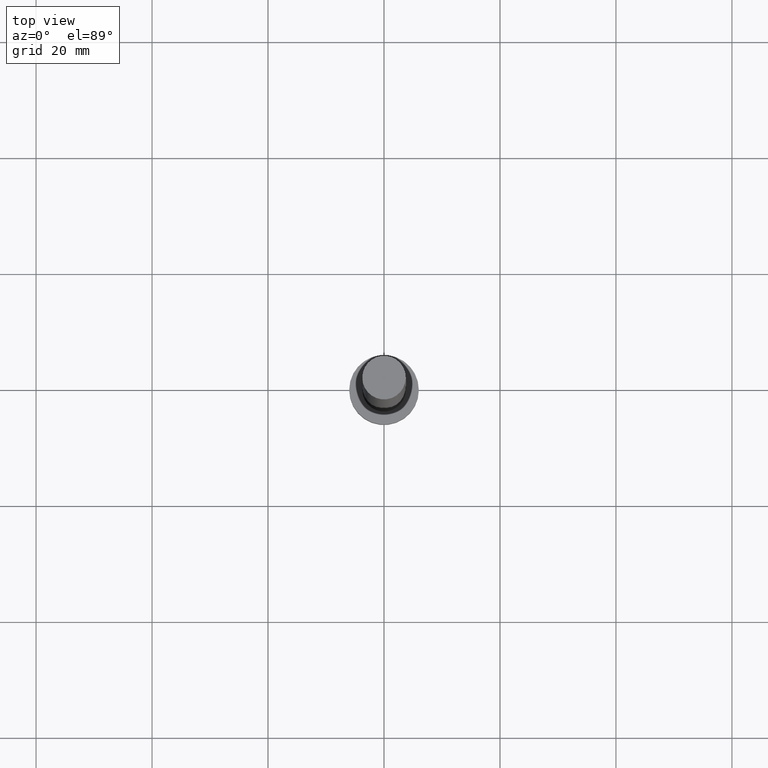
[diagram: clean part render]
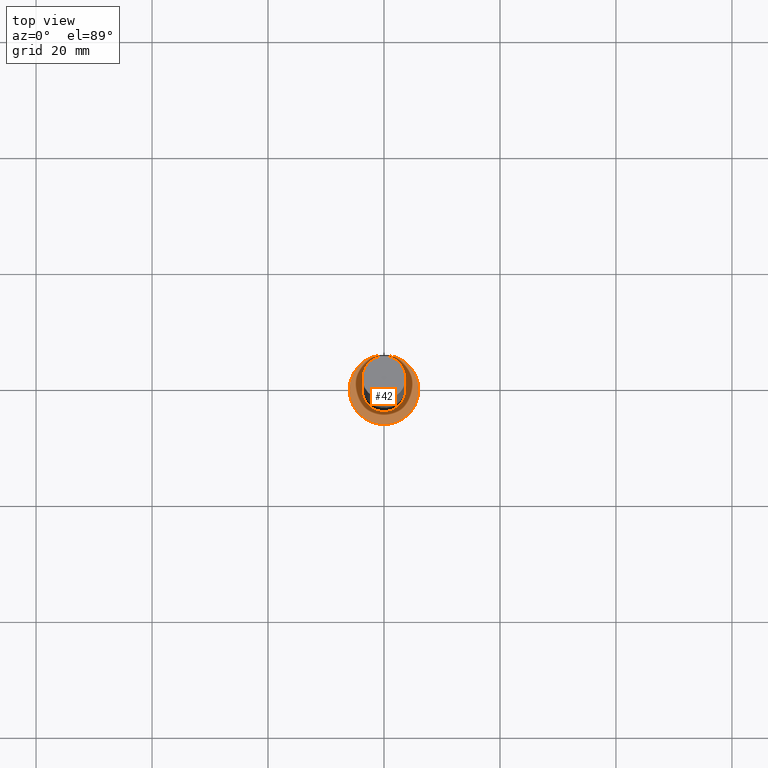
[diagram: same view with one face highlighted and labeled with its STEP entity id]
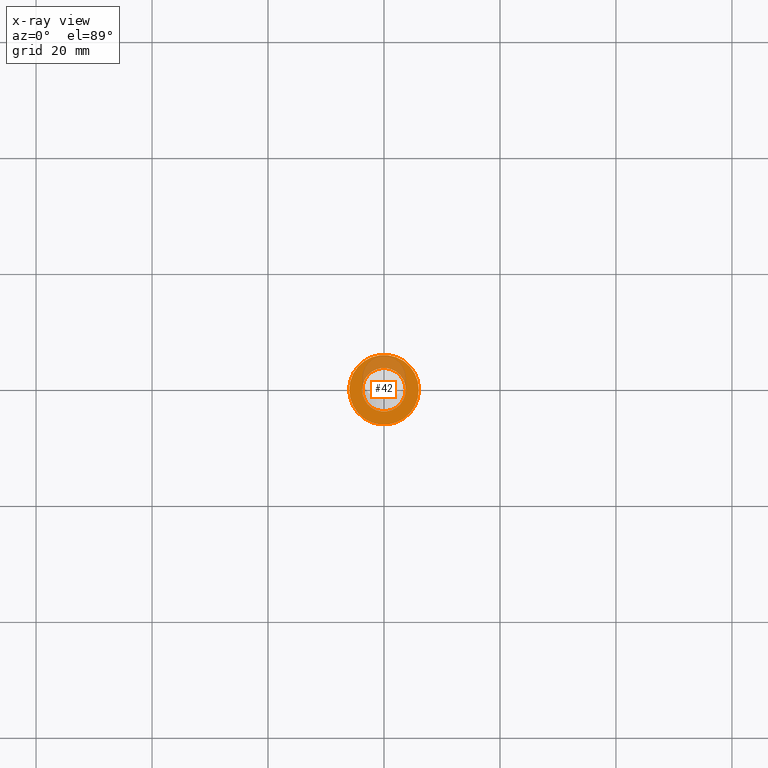
[diagram: x-ray of the same camera — body ghosted, the highlighted face saturated]
A machine part, top view. The second image highlights one B-rep face of the part: STEP entity #42.
The next image is the same camera in x-ray: the body ghosted, the highlighted face saturated — about 23% of this face is hidden behind the body in this view.
In plain terms, the highlighted planar face has unit normal (0, 0, 1).
Its self-contained STEP definition (entity closure, byte-faithful):
#4 = ORIENTED_EDGE ( 'NONE', *, *, #112, .T. ) ;
#9 = CIRCLE ( 'NONE', #78, 6.000000000000000888 ) ;
#10 = CARTESIAN_POINT ( 'NONE',  ( 0.000000000000000000, 0.000000000000000000, 5.000000000000000000 ) ) ;
#14 = CARTESIAN_POINT ( 'NONE',  ( -6.000000000000000888, 0.000000000000000000, 5.000000000000000000 ) ) ;
#25 = AXIS2_PLACEMENT_3D ( 'NONE', #89, #243, #162 ) ;
#31 = FACE_OUTER_BOUND ( 'NONE', #200, .T. ) ;
#34 = ORIENTED_EDGE ( 'NONE', *, *, #199, .T. ) ;
#38 = DIRECTION ( 'NONE',  ( 1.000000000000000000, 0.000000000000000000, 0.000000000000000000 ) ) ;
#39 = DIRECTION ( 'NONE',  ( 1.000000000000000000, 0.000000000000000000, 0.000000000000000000 ) ) ;
#42 = ADVANCED_FACE ( 'NONE', ( #205, #31 ), #185, .T. ) ;
#46 = AXIS2_PLACEMENT_3D ( 'NONE', #171, #93, #39 ) ;
#53 = VERTEX_POINT ( 'NONE', #145 ) ;
#57 = CIRCLE ( 'NONE', #104, 6.000000000000000888 ) ;
#78 = AXIS2_PLACEMENT_3D ( 'NONE', #155, #115, #79 ) ;
#79 = DIRECTION ( 'NONE',  ( 1.000000000000000000, 0.000000000000000000, 0.000000000000000000 ) ) ;
#84 = CIRCLE ( 'NONE', #25, 3.750000000000000000 ) ;
#89 = CARTESIAN_POINT ( 'NONE',  ( 0.000000000000000000, 0.000000000000000000, 5.000000000000000000 ) ) ;
#91 = DIRECTION ( 'NONE',  ( 0.000000000000000000, 0.000000000000000000, 1.000000000000000000 ) ) ;
#93 = DIRECTION ( 'NONE',  ( 0.000000000000000000, 0.000000000000000000, 1.000000000000000000 ) ) ;
#104 = AXIS2_PLACEMENT_3D ( 'NONE', #137, #210, #38 ) ;
#106 = ORIENTED_EDGE ( 'NONE', *, *, #246, .F. ) ;
#112 = EDGE_CURVE ( 'NONE', #186, #202, #57, .T. ) ;
#115 = DIRECTION ( 'NONE',  ( 0.000000000000000000, 0.000000000000000000, 1.000000000000000000 ) ) ;
#119 = CIRCLE ( 'NONE', #46, 3.750000000000000000 ) ;
#137 = CARTESIAN_POINT ( 'NONE',  ( 0.000000000000000000, 0.000000000000000000, 5.000000000000000000 ) ) ;
#145 = CARTESIAN_POINT ( 'NONE',  ( 3.750000000000000000, 4.592425496802573972E-16, 5.000000000000000000 ) ) ;
#146 = ORIENTED_EDGE ( 'NONE', *, *, #164, .F. ) ;
#155 = CARTESIAN_POINT ( 'NONE',  ( 0.000000000000000000, 0.000000000000000000, 5.000000000000000000 ) ) ;
#162 = DIRECTION ( 'NONE',  ( 1.000000000000000000, 0.000000000000000000, 0.000000000000000000 ) ) ;
#164 = EDGE_CURVE ( 'NONE', #53, #223, #119, .T. ) ;
#166 = DIRECTION ( 'NONE',  ( 1.000000000000000000, 0.000000000000000000, -0.000000000000000000 ) ) ;
#171 = CARTESIAN_POINT ( 'NONE',  ( 0.000000000000000000, 0.000000000000000000, 5.000000000000000000 ) ) ;
#185 = PLANE ( 'NONE',  #207 ) ;
#186 = VERTEX_POINT ( 'NONE', #14 ) ;
#192 = CARTESIAN_POINT ( 'NONE',  ( -3.750000000000000000, 0.000000000000000000, 5.000000000000000000 ) ) ;
#199 = EDGE_CURVE ( 'NONE', #202, #186, #9, .T. ) ;
#200 = EDGE_LOOP ( 'NONE', ( #4, #34 ) ) ;
#202 = VERTEX_POINT ( 'NONE', #233 ) ;
#203 = EDGE_LOOP ( 'NONE', ( #106, #146 ) ) ;
#205 = FACE_BOUND ( 'NONE', #203, .T. ) ;
#207 = AXIS2_PLACEMENT_3D ( 'NONE', #10, #91, #166 ) ;
#210 = DIRECTION ( 'NONE',  ( 0.000000000000000000, 0.000000000000000000, 1.000000000000000000 ) ) ;
#223 = VERTEX_POINT ( 'NONE', #192 ) ;
#233 = CARTESIAN_POINT ( 'NONE',  ( 6.000000000000000888, 7.347880794884120722E-16, 5.000000000000000000 ) ) ;
#243 = DIRECTION ( 'NONE',  ( 0.000000000000000000, 0.000000000000000000, 1.000000000000000000 ) ) ;
#246 = EDGE_CURVE ( 'NONE', #223, #53, #84, .T. ) ;